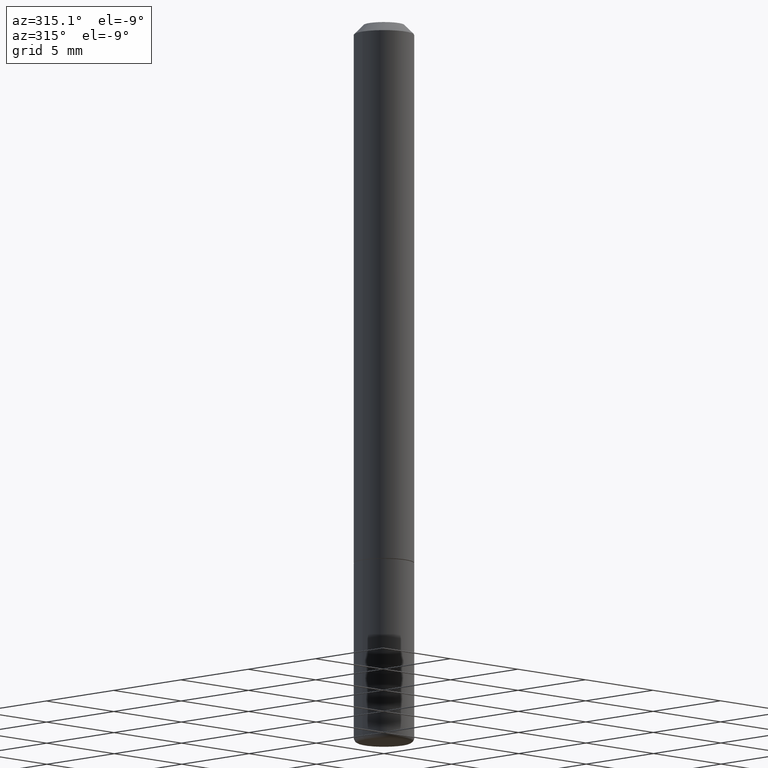
[diagram: clean part render]
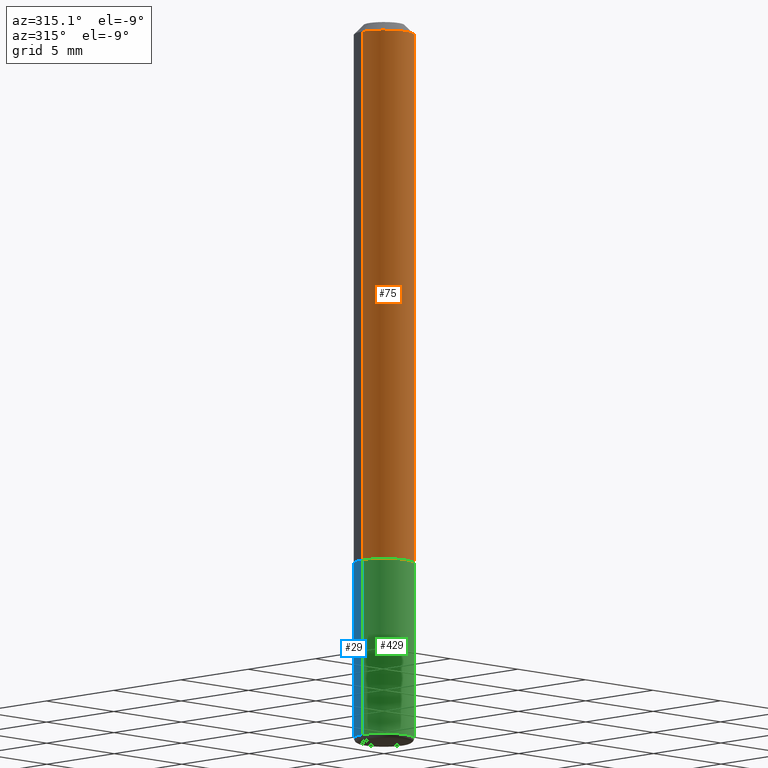
[diagram: same view with three faces highlighted in distinct colors, each labeled with its STEP entity id]
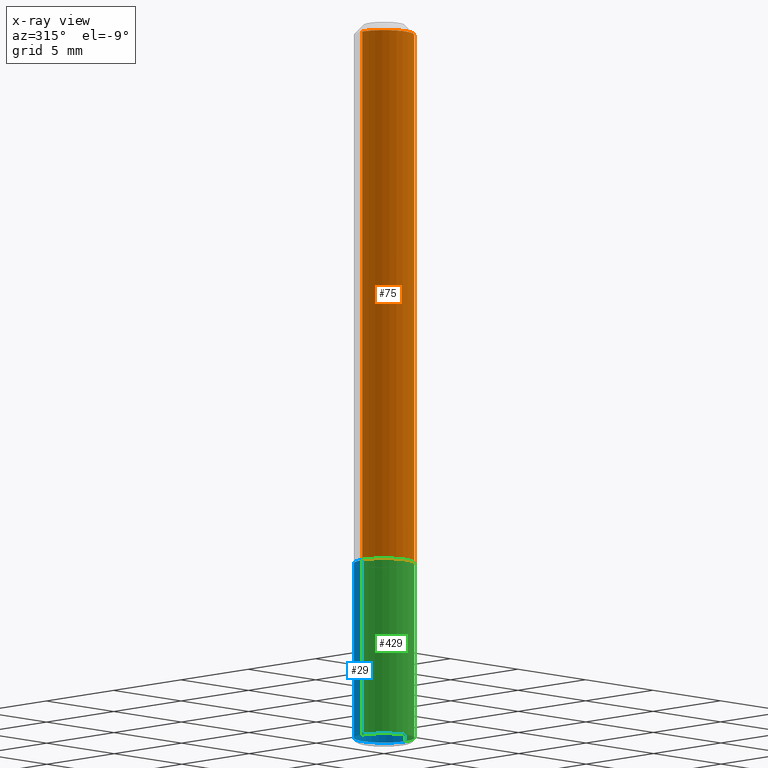
[diagram: x-ray of the same camera — body ghosted, the three highlighted faces saturated]
A machine part, auxiliary view with three faces highlighted in distinct colors.
The next image is the same camera in x-ray (body ghosted, the three faces saturated) — at least one of them is partly hidden behind the body in this view.
Their STEP definitions:

[orange] entity #75 — the highlighted cylindrical surface (edge-blend (fillet) strip) has radius 1.5875 mm, axis along (-0, 0, 1).
#7 = CARTESIAN_POINT ( 'NONE',  ( -0.06249999999999981265, 4.440892098500612850E-16, -3.074334431409306655E-30 ) ) ;
#17 = CARTESIAN_POINT ( 'NONE',  ( -0.06249999999999988204, -1.553038115968216353E-15, -1.124000000000000332 ) ) ;
#28 = ORIENTED_EDGE ( 'NONE', *, *, #149, .T. ) ;
#34 = ORIENTED_EDGE ( 'NONE', *, *, #478, .T. ) ;
#40 = VERTEX_POINT ( 'NONE', #17 ) ;
#46 = CARTESIAN_POINT ( 'NONE',  ( 4.890937612370289799E-31, -6.982962677686315028E-17, -0.02000000000000006981 ) ) ;
#48 = AXIS2_PLACEMENT_3D ( 'NONE', #88, #241, #386 ) ;
#65 = VECTOR ( 'NONE', #158, 39.37007874015748143 ) ;
#75 = ADVANCED_FACE ( 'NONE', ( #175 ), #330, .T. ) ;
#76 = LINE ( 'NONE', #122, #353 ) ;
#83 = EDGE_CURVE ( 'NONE', #492, #375, #468, .T. ) ;
#88 = CARTESIAN_POINT ( 'NONE',  ( 0.000000000000000000, 0.000000000000000000, 0.000000000000000000 ) ) ;
#120 = AXIS2_PLACEMENT_3D ( 'NONE', #186, #339, #142 ) ;
#122 = CARTESIAN_POINT ( 'NONE',  ( 0.06249999999999981265, -4.364351673553903382E-16, 3.047610484872450762E-30 ) ) ;
#132 = AXIS2_PLACEMENT_3D ( 'NONE', #46, #475, #428 ) ;
#135 = ORIENTED_EDGE ( 'NONE', *, *, #83, .F. ) ;
#142 = DIRECTION ( 'NONE',  ( 1.000000000000000000, -6.982962677686268288E-15, 0.000000000000000000 ) ) ;
#149 = EDGE_CURVE ( 'NONE', #369, #375, #76, .T. ) ;
#158 = DIRECTION ( 'NONE',  ( -2.445468806185136877E-29, 3.491481338843145188E-15, 1.000000000000000000 ) ) ;
#169 = CARTESIAN_POINT ( 'NONE',  ( 0.06249999999999988204, -4.360860192215087886E-15, -1.124000000000000332 ) ) ;
#175 = FACE_OUTER_BOUND ( 'NONE', #190, .T. ) ;
#186 = CARTESIAN_POINT ( 'NONE',  ( 2.748706938152094189E-29, -3.924425024859697006E-15, -1.124000000000000332 ) ) ;
#190 = EDGE_LOOP ( 'NONE', ( #378, #34, #28, #135 ) ) ;
#241 = DIRECTION ( 'NONE',  ( -2.445468806185136597E-29, 3.491481338843145583E-15, 1.000000000000000000 ) ) ;
#245 = CIRCLE ( 'NONE', #120, 0.06249999999999988204 ) ;
#248 = EDGE_CURVE ( 'NONE', #40, #492, #307, .T. ) ;
#307 = LINE ( 'NONE', #7, #65 ) ;
#330 = CYLINDRICAL_SURFACE ( 'NONE', #48, 0.06249999999999981265 ) ;
#339 = DIRECTION ( 'NONE',  ( -2.445468806185136597E-29, 3.491481338843145583E-15, 1.000000000000000000 ) ) ;
#353 = VECTOR ( 'NONE', #383, 39.37007874015748143 ) ;
#369 = VERTEX_POINT ( 'NONE', #169 ) ;
#375 = VERTEX_POINT ( 'NONE', #393 ) ;
#378 = ORIENTED_EDGE ( 'NONE', *, *, #248, .F. ) ;
#383 = DIRECTION ( 'NONE',  ( -2.445468806185136877E-29, 3.491481338843145188E-15, 1.000000000000000000 ) ) ;
#386 = DIRECTION ( 'NONE',  ( 1.000000000000000000, -6.982962677686266711E-15, 4.876176775795935793E-29 ) ) ;
#393 = CARTESIAN_POINT ( 'NONE',  ( 0.06249999999999974326, -4.986107516375821473E-16, -0.02000000000000006981 ) ) ;
#428 = DIRECTION ( 'NONE',  ( 1.000000000000000000, -6.982962677686265922E-15, 0.000000000000000000 ) ) ;
#444 = CARTESIAN_POINT ( 'NONE',  ( -0.06249999999999974326, 3.666055405785266949E-16, -0.02000000000000006981 ) ) ;
#468 = CIRCLE ( 'NONE', #132, 0.06249999999999974326 ) ;
#475 = DIRECTION ( 'NONE',  ( -2.445468806185136597E-29, 3.491481338843145583E-15, 1.000000000000000000 ) ) ;
#478 = EDGE_CURVE ( 'NONE', #40, #369, #245, .T. ) ;
#492 = VERTEX_POINT ( 'NONE', #444 ) ;

[blue] entity #29 — the highlighted cylindrical surface (edge-blend (fillet) strip) has radius 1.5875 mm, axis along (-0, 0, 1).
#2 = VERTEX_POINT ( 'NONE', #258 ) ;
#29 = ADVANCED_FACE ( 'NONE', ( #33 ), #366, .T. ) ;
#33 = FACE_OUTER_BOUND ( 'NONE', #371, .T. ) ;
#53 = DIRECTION ( 'NONE',  ( -2.445468806185136877E-29, 3.491481338843145188E-15, 1.000000000000000000 ) ) ;
#59 = LINE ( 'NONE', #325, #364 ) ;
#72 = AXIS2_PLACEMENT_3D ( 'NONE', #287, #174, #481 ) ;
#98 = CARTESIAN_POINT ( 'NONE',  ( 3.643749452375443092E-29, -5.202308524325397108E-15, -1.490000380769358701 ) ) ;
#118 = CARTESIAN_POINT ( 'NONE',  ( 0.06249999999999988204, -4.364351673553931682E-15, -1.125000000000000444 ) ) ;
#137 = CARTESIAN_POINT ( 'NONE',  ( -0.06249999999999981265, -4.121023305411907128E-15, -1.490000380769358701 ) ) ;
#139 = VERTEX_POINT ( 'NONE', #137 ) ;
#165 = CARTESIAN_POINT ( 'NONE',  ( -0.06249999999999984734, 4.440892098500615315E-16, -3.074334431409308406E-30 ) ) ;
#174 = DIRECTION ( 'NONE',  ( -2.445468806185136597E-29, 3.491481338843145583E-15, 1.000000000000000000 ) ) ;
#184 = VERTEX_POINT ( 'NONE', #240 ) ;
#191 = ORIENTED_EDGE ( 'NONE', *, *, #341, .F. ) ;
#211 = DIRECTION ( 'NONE',  ( 1.000000000000000000, -6.982962677686269077E-15, 0.000000000000000000 ) ) ;
#214 = DIRECTION ( 'NONE',  ( -2.445468806185136597E-29, 3.491481338843145583E-15, 1.000000000000000000 ) ) ;
#228 = CIRCLE ( 'NONE', #72, 0.06249999999999988204 ) ;
#229 = ORIENTED_EDGE ( 'NONE', *, *, #392, .F. ) ;
#240 = CARTESIAN_POINT ( 'NONE',  ( -0.06249999999999986816, -4.121023305411907128E-15, -1.125000000000000444 ) ) ;
#255 = DIRECTION ( 'NONE',  ( -2.445468806185136597E-29, 3.491481338843145583E-15, 1.000000000000000000 ) ) ;
#258 = CARTESIAN_POINT ( 'NONE',  ( 0.06249999999999981265, -5.638743691680787200E-15, -1.490000380769358701 ) ) ;
#264 = EDGE_CURVE ( 'NONE', #139, #184, #433, .T. ) ;
#273 = AXIS2_PLACEMENT_3D ( 'NONE', #442, #214, #400 ) ;
#287 = CARTESIAN_POINT ( 'NONE',  ( 2.751152406958279792E-29, -3.927916506198540013E-15, -1.125000000000000444 ) ) ;
#296 = VERTEX_POINT ( 'NONE', #118 ) ;
#325 = CARTESIAN_POINT ( 'NONE',  ( 0.06249999999999984734, -4.364351673553905847E-16, 3.047610484872452514E-30 ) ) ;
#341 = EDGE_CURVE ( 'NONE', #296, #184, #228, .T. ) ;
#344 = CIRCLE ( 'NONE', #422, 0.06249999999999981265 ) ;
#346 = ORIENTED_EDGE ( 'NONE', *, *, #398, .T. ) ;
#364 = VECTOR ( 'NONE', #53, 39.37007874015748143 ) ;
#366 = CYLINDRICAL_SURFACE ( 'NONE', #273, 0.06249999999999984734 ) ;
#371 = EDGE_LOOP ( 'NONE', ( #346, #430, #191, #229 ) ) ;
#392 = EDGE_CURVE ( 'NONE', #2, #296, #59, .T. ) ;
#398 = EDGE_CURVE ( 'NONE', #2, #139, #344, .T. ) ;
#400 = DIRECTION ( 'NONE',  ( 1.000000000000000000, -6.982962677686266711E-15, 4.876176775795935793E-29 ) ) ;
#422 = AXIS2_PLACEMENT_3D ( 'NONE', #98, #255, #211 ) ;
#430 = ORIENTED_EDGE ( 'NONE', *, *, #264, .T. ) ;
#433 = LINE ( 'NONE', #165, #483 ) ;
#442 = CARTESIAN_POINT ( 'NONE',  ( 0.000000000000000000, 0.000000000000000000, 0.000000000000000000 ) ) ;
#473 = DIRECTION ( 'NONE',  ( -2.445468806185136877E-29, 3.491481338843145188E-15, 1.000000000000000000 ) ) ;
#481 = DIRECTION ( 'NONE',  ( 1.000000000000000000, -6.982962677686268288E-15, 0.000000000000000000 ) ) ;
#483 = VECTOR ( 'NONE', #473, 39.37007874015748143 ) ;

[green] entity #429 — the highlighted cylindrical surface (edge-blend (fillet) strip) has radius 1.5875 mm, axis along (-0, 0, 1).
#1 = CIRCLE ( 'NONE', #11, 0.06249999999999988204 ) ;
#2 = VERTEX_POINT ( 'NONE', #258 ) ;
#11 = AXIS2_PLACEMENT_3D ( 'NONE', #27, #162, #319 ) ;
#13 = FACE_OUTER_BOUND ( 'NONE', #349, .T. ) ;
#27 = CARTESIAN_POINT ( 'NONE',  ( 2.751152406958279792E-29, -3.927916506198540013E-15, -1.125000000000000444 ) ) ;
#36 = ORIENTED_EDGE ( 'NONE', *, *, #264, .F. ) ;
#53 = DIRECTION ( 'NONE',  ( -2.445468806185136877E-29, 3.491481338843145188E-15, 1.000000000000000000 ) ) ;
#59 = LINE ( 'NONE', #325, #364 ) ;
#90 = AXIS2_PLACEMENT_3D ( 'NONE', #394, #94, #362 ) ;
#94 = DIRECTION ( 'NONE',  ( -2.445468806185136597E-29, 3.491481338843145583E-15, 1.000000000000000000 ) ) ;
#118 = CARTESIAN_POINT ( 'NONE',  ( 0.06249999999999988204, -4.364351673553931682E-15, -1.125000000000000444 ) ) ;
#130 = EDGE_CURVE ( 'NONE', #184, #296, #1, .T. ) ;
#134 = CARTESIAN_POINT ( 'NONE',  ( 0.000000000000000000, 0.000000000000000000, 0.000000000000000000 ) ) ;
#137 = CARTESIAN_POINT ( 'NONE',  ( -0.06249999999999981265, -4.121023305411907128E-15, -1.490000380769358701 ) ) ;
#139 = VERTEX_POINT ( 'NONE', #137 ) ;
#162 = DIRECTION ( 'NONE',  ( -2.445468806185136597E-29, 3.491481338843145583E-15, 1.000000000000000000 ) ) ;
#165 = CARTESIAN_POINT ( 'NONE',  ( -0.06249999999999984734, 4.440892098500615315E-16, -3.074334431409308406E-30 ) ) ;
#171 = DIRECTION ( 'NONE',  ( -2.445468806185136597E-29, 3.491481338843145583E-15, 1.000000000000000000 ) ) ;
#184 = VERTEX_POINT ( 'NONE', #240 ) ;
#224 = ORIENTED_EDGE ( 'NONE', *, *, #370, .T. ) ;
#240 = CARTESIAN_POINT ( 'NONE',  ( -0.06249999999999986816, -4.121023305411907128E-15, -1.125000000000000444 ) ) ;
#258 = CARTESIAN_POINT ( 'NONE',  ( 0.06249999999999981265, -5.638743691680787200E-15, -1.490000380769358701 ) ) ;
#264 = EDGE_CURVE ( 'NONE', #139, #184, #433, .T. ) ;
#289 = DIRECTION ( 'NONE',  ( 1.000000000000000000, -6.982962677686266711E-15, 4.876176775795935793E-29 ) ) ;
#296 = VERTEX_POINT ( 'NONE', #118 ) ;
#302 = CIRCLE ( 'NONE', #90, 0.06249999999999981265 ) ;
#319 = DIRECTION ( 'NONE',  ( 1.000000000000000000, -6.982962677686268288E-15, 0.000000000000000000 ) ) ;
#323 = AXIS2_PLACEMENT_3D ( 'NONE', #134, #171, #289 ) ;
#325 = CARTESIAN_POINT ( 'NONE',  ( 0.06249999999999984734, -4.364351673553905847E-16, 3.047610484872452514E-30 ) ) ;
#349 = EDGE_LOOP ( 'NONE', ( #36, #224, #357, #407 ) ) ;
#357 = ORIENTED_EDGE ( 'NONE', *, *, #392, .T. ) ;
#362 = DIRECTION ( 'NONE',  ( 1.000000000000000000, -6.982962677686269077E-15, 0.000000000000000000 ) ) ;
#364 = VECTOR ( 'NONE', #53, 39.37007874015748143 ) ;
#370 = EDGE_CURVE ( 'NONE', #139, #2, #302, .T. ) ;
#392 = EDGE_CURVE ( 'NONE', #2, #296, #59, .T. ) ;
#394 = CARTESIAN_POINT ( 'NONE',  ( 3.643749452375443092E-29, -5.202308524325397108E-15, -1.490000380769358701 ) ) ;
#407 = ORIENTED_EDGE ( 'NONE', *, *, #130, .F. ) ;
#429 = ADVANCED_FACE ( 'NONE', ( #13 ), #482, .T. ) ;
#433 = LINE ( 'NONE', #165, #483 ) ;
#473 = DIRECTION ( 'NONE',  ( -2.445468806185136877E-29, 3.491481338843145188E-15, 1.000000000000000000 ) ) ;
#482 = CYLINDRICAL_SURFACE ( 'NONE', #323, 0.06249999999999984734 ) ;
#483 = VECTOR ( 'NONE', #473, 39.37007874015748143 ) ;